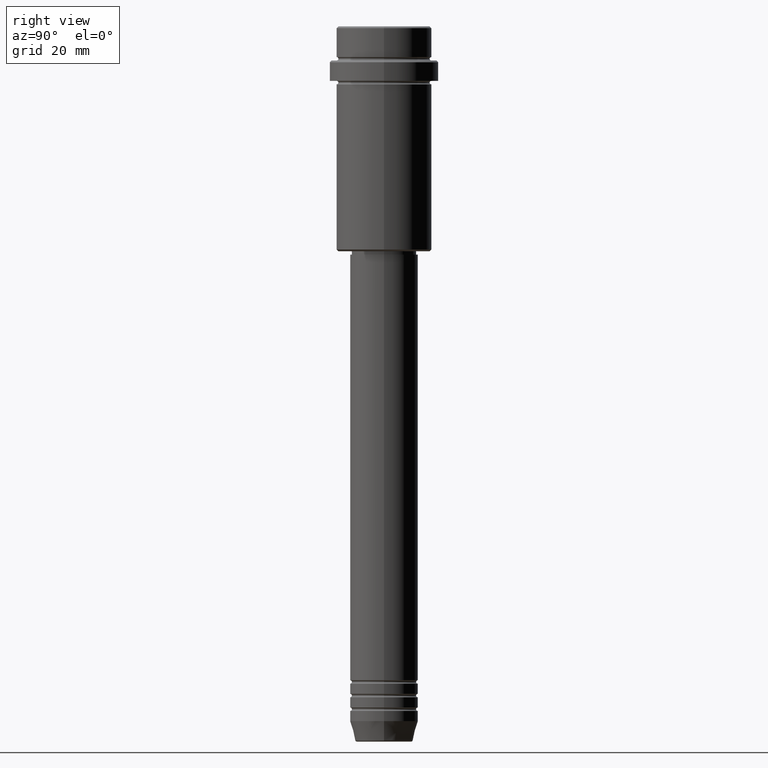
[diagram: clean part render]
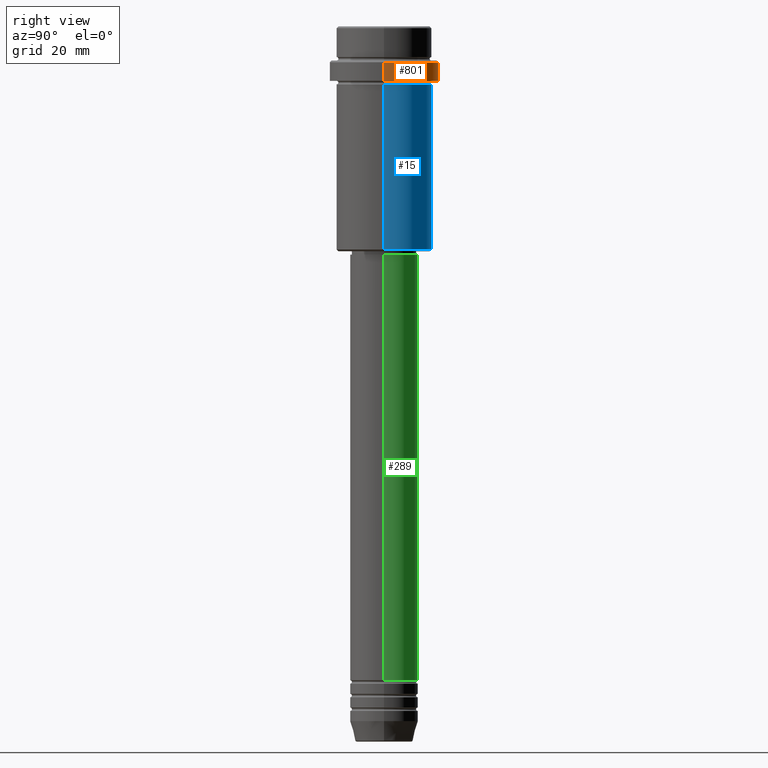
[diagram: same view with three faces highlighted in distinct colors, each labeled with its STEP entity id]
A machine part, right view with three faces highlighted in distinct colors.
Their STEP definitions:

[orange] entity #801 — the highlighted cylindrical surface (partial cylindrical patch) has radius 16 mm, axis along (-0, -0, 1).
#22 = DIRECTION ( 'NONE',  ( -0.000000000000000000, -0.000000000000000000, 1.000000000000000000 ) ) ;
#49 = CIRCLE ( 'NONE', #1293, 15.99999999999997335 ) ;
#53 = CARTESIAN_POINT ( 'NONE',  ( 0.000000000000000000, 0.000000000000000000, -10.50000000000001243 ) ) ;
#62 = VERTEX_POINT ( 'NONE', #322 ) ;
#147 = LINE ( 'NONE', #384, #1011 ) ;
#239 = EDGE_LOOP ( 'NONE', ( #621, #242, #903, #1045 ) ) ;
#242 = ORIENTED_EDGE ( 'NONE', *, *, #1250, .T. ) ;
#322 = CARTESIAN_POINT ( 'NONE',  ( 15.99999999999997335, 0.000000000000000000, -10.50000000000001243 ) ) ;
#351 = CYLINDRICAL_SURFACE ( 'NONE', #1207, 15.99999999999997335 ) ;
#384 = CARTESIAN_POINT ( 'NONE',  ( 15.99999999999997335, 0.000000000000000000, 0.000000000000000000 ) ) ;
#396 = FACE_OUTER_BOUND ( 'NONE', #239, .T. ) ;
#490 = DIRECTION ( 'NONE',  ( -0.000000000000000000, -0.000000000000000000, 1.000000000000000000 ) ) ;
#501 = DIRECTION ( 'NONE',  ( 0.000000000000000000, 0.000000000000000000, -1.000000000000000000 ) ) ;
#502 = CARTESIAN_POINT ( 'NONE',  ( -15.99999999999997335, 1.959434878635761976E-15, -16.00000000000000000 ) ) ;
#541 = VECTOR ( 'NONE', #22, 1000.000000000000000 ) ;
#599 = CARTESIAN_POINT ( 'NONE',  ( 15.99999999999997335, 0.000000000000000000, -16.00000000000000000 ) ) ;
#600 = EDGE_CURVE ( 'NONE', #1169, #62, #49, .T. ) ;
#621 = ORIENTED_EDGE ( 'NONE', *, *, #1054, .T. ) ;
#652 = CARTESIAN_POINT ( 'NONE',  ( 0.000000000000000000, 0.000000000000000000, -16.00000000000000000 ) ) ;
#692 = DIRECTION ( 'NONE',  ( -0.000000000000000000, -0.000000000000000000, 1.000000000000000000 ) ) ;
#694 = EDGE_CURVE ( 'NONE', #756, #62, #147, .T. ) ;
#750 = AXIS2_PLACEMENT_3D ( 'NONE', #652, #871, #1309 ) ;
#756 = VERTEX_POINT ( 'NONE', #599 ) ;
#801 = ADVANCED_FACE ( 'NONE', ( #396 ), #351, .T. ) ;
#871 = DIRECTION ( 'NONE',  ( -0.000000000000000000, -0.000000000000000000, 1.000000000000000000 ) ) ;
#903 = ORIENTED_EDGE ( 'NONE', *, *, #600, .T. ) ;
#987 = DIRECTION ( 'NONE',  ( 1.000000000000000000, 0.000000000000000000, 0.000000000000000000 ) ) ;
#1011 = VECTOR ( 'NONE', #490, 1000.000000000000000 ) ;
#1013 = LINE ( 'NONE', #1132, #541 ) ;
#1045 = ORIENTED_EDGE ( 'NONE', *, *, #694, .F. ) ;
#1054 = EDGE_CURVE ( 'NONE', #756, #1409, #1364, .T. ) ;
#1132 = CARTESIAN_POINT ( 'NONE',  ( -15.99999999999997335, 1.959434878635761976E-15, 0.000000000000000000 ) ) ;
#1169 = VERTEX_POINT ( 'NONE', #1301 ) ;
#1207 = AXIS2_PLACEMENT_3D ( 'NONE', #1237, #692, #987 ) ;
#1237 = CARTESIAN_POINT ( 'NONE',  ( 0.000000000000000000, 0.000000000000000000, 0.000000000000000000 ) ) ;
#1250 = EDGE_CURVE ( 'NONE', #1409, #1169, #1013, .T. ) ;
#1253 = DIRECTION ( 'NONE',  ( 1.000000000000000000, 0.000000000000000000, 0.000000000000000000 ) ) ;
#1293 = AXIS2_PLACEMENT_3D ( 'NONE', #53, #501, #1253 ) ;
#1301 = CARTESIAN_POINT ( 'NONE',  ( -15.99999999999997335, 1.959434878635761976E-15, -10.50000000000001243 ) ) ;
#1309 = DIRECTION ( 'NONE',  ( 1.000000000000000000, 0.000000000000000000, 0.000000000000000000 ) ) ;
#1364 = CIRCLE ( 'NONE', #750, 15.99999999999997335 ) ;
#1409 = VERTEX_POINT ( 'NONE', #502 ) ;

[blue] entity #15 — the highlighted cylindrical surface (partial cylindrical patch) has radius 14 mm, axis along (-0, -0, 1).
#15 = ADVANCED_FACE ( 'NONE', ( #1058 ), #741, .T. ) ;
#134 = DIRECTION ( 'NONE',  ( -0.000000000000000000, -0.000000000000000000, 1.000000000000000000 ) ) ;
#150 = LINE ( 'NONE', #247, #327 ) ;
#151 = VERTEX_POINT ( 'NONE', #875 ) ;
#173 = DIRECTION ( 'NONE',  ( 1.000000000000000000, 0.000000000000000000, 0.000000000000000000 ) ) ;
#231 = VERTEX_POINT ( 'NONE', #332 ) ;
#247 = CARTESIAN_POINT ( 'NONE',  ( -13.99999999999998401, 1.714505518806292666E-15, 0.000000000000000000 ) ) ;
#249 = ORIENTED_EDGE ( 'NONE', *, *, #279, .F. ) ;
#277 = EDGE_CURVE ( 'NONE', #151, #1107, #1391, .T. ) ;
#279 = EDGE_CURVE ( 'NONE', #1107, #231, #542, .T. ) ;
#305 = AXIS2_PLACEMENT_3D ( 'NONE', #644, #757, #173 ) ;
#309 = DIRECTION ( 'NONE',  ( -0.000000000000000000, -0.000000000000000000, 1.000000000000000000 ) ) ;
#327 = VECTOR ( 'NONE', #134, 1000.000000000000000 ) ;
#332 = CARTESIAN_POINT ( 'NONE',  ( -13.99999999999997158, 1.714505518806291877E-15, -17.00000000000000355 ) ) ;
#438 = ORIENTED_EDGE ( 'NONE', *, *, #1102, .T. ) ;
#485 = ORIENTED_EDGE ( 'NONE', *, *, #894, .T. ) ;
#491 = VERTEX_POINT ( 'NONE', #509 ) ;
#509 = CARTESIAN_POINT ( 'NONE',  ( -13.99999999999998401, 1.714505518806292666E-15, -65.50000000000004263 ) ) ;
#515 = CIRCLE ( 'NONE', #1320, 13.99999999999998401 ) ;
#526 = DIRECTION ( 'NONE',  ( -1.000000000000000000, 0.000000000000000000, 0.000000000000000000 ) ) ;
#542 = CIRCLE ( 'NONE', #305, 13.99999999999997158 ) ;
#644 = CARTESIAN_POINT ( 'NONE',  ( 0.000000000000000000, 0.000000000000000000, -17.00000000000000355 ) ) ;
#658 = VECTOR ( 'NONE', #309, 1000.000000000000000 ) ;
#697 = ORIENTED_EDGE ( 'NONE', *, *, #277, .F. ) ;
#741 = CYLINDRICAL_SURFACE ( 'NONE', #1183, 13.99999999999998401 ) ;
#757 = DIRECTION ( 'NONE',  ( -0.000000000000000000, -0.000000000000000000, 1.000000000000000000 ) ) ;
#874 = DIRECTION ( 'NONE',  ( -0.000000000000000000, -0.000000000000000000, 1.000000000000000000 ) ) ;
#875 = CARTESIAN_POINT ( 'NONE',  ( 13.99999999999998401, 0.000000000000000000, -65.50000000000004263 ) ) ;
#894 = EDGE_CURVE ( 'NONE', #151, #491, #515, .T. ) ;
#1027 = CARTESIAN_POINT ( 'NONE',  ( 13.99999999999997158, 0.000000000000000000, -17.00000000000000355 ) ) ;
#1028 = CARTESIAN_POINT ( 'NONE',  ( 0.000000000000000000, 0.000000000000000000, 0.000000000000000000 ) ) ;
#1035 = DIRECTION ( 'NONE',  ( 1.000000000000000000, 0.000000000000000000, 0.000000000000000000 ) ) ;
#1058 = FACE_OUTER_BOUND ( 'NONE', #1071, .T. ) ;
#1071 = EDGE_LOOP ( 'NONE', ( #485, #438, #249, #697 ) ) ;
#1102 = EDGE_CURVE ( 'NONE', #491, #231, #150, .T. ) ;
#1107 = VERTEX_POINT ( 'NONE', #1027 ) ;
#1172 = DIRECTION ( 'NONE',  ( -0.000000000000000000, -0.000000000000000000, 1.000000000000000000 ) ) ;
#1183 = AXIS2_PLACEMENT_3D ( 'NONE', #1028, #1172, #1035 ) ;
#1320 = AXIS2_PLACEMENT_3D ( 'NONE', #1413, #874, #526 ) ;
#1377 = CARTESIAN_POINT ( 'NONE',  ( 13.99999999999998401, 0.000000000000000000, 0.000000000000000000 ) ) ;
#1391 = LINE ( 'NONE', #1377, #658 ) ;
#1413 = CARTESIAN_POINT ( 'NONE',  ( 0.000000000000000000, 0.000000000000000000, -65.50000000000004263 ) ) ;

[green] entity #289 — the highlighted cylindrical surface (edge-blend (fillet) strip) has radius 10 mm, axis along (-0, -0, 1).
#45 = ORIENTED_EDGE ( 'NONE', *, *, #843, .F. ) ;
#64 = CYLINDRICAL_SURFACE ( 'NONE', #583, 10.00000000000000178 ) ;
#72 = VECTOR ( 'NONE', #1240, 1000.000000000000000 ) ;
#97 = CARTESIAN_POINT ( 'NONE',  ( -10.00000000000000000, 1.224646799147353256E-15, -191.9999999999999147 ) ) ;
#124 = LINE ( 'NONE', #569, #682 ) ;
#128 = VERTEX_POINT ( 'NONE', #97 ) ;
#139 = CIRCLE ( 'NONE', #818, 10.00000000000000178 ) ;
#162 = EDGE_CURVE ( 'NONE', #805, #1055, #124, .T. ) ;
#178 = CARTESIAN_POINT ( 'NONE',  ( 0.000000000000000000, 0.000000000000000000, -191.9999999999999147 ) ) ;
#183 = DIRECTION ( 'NONE',  ( 1.000000000000000000, 0.000000000000000000, 0.000000000000000000 ) ) ;
#195 = DIRECTION ( 'NONE',  ( -0.000000000000000000, -0.000000000000000000, 1.000000000000000000 ) ) ;
#289 = ADVANCED_FACE ( 'NONE', ( #510 ), #64, .T. ) ;
#290 = ORIENTED_EDGE ( 'NONE', *, *, #162, .F. ) ;
#334 = CARTESIAN_POINT ( 'NONE',  ( -10.00000000000000178, 1.224646799147353454E-15, 0.000000000000000000 ) ) ;
#402 = CIRCLE ( 'NONE', #1129, 10.00000000000000000 ) ;
#457 = DIRECTION ( 'NONE',  ( -0.000000000000000000, -0.000000000000000000, 1.000000000000000000 ) ) ;
#510 = FACE_OUTER_BOUND ( 'NONE', #701, .T. ) ;
#540 = EDGE_CURVE ( 'NONE', #805, #128, #402, .T. ) ;
#545 = CARTESIAN_POINT ( 'NONE',  ( 10.00000000000000178, 0.000000000000000000, -67.00000000000000000 ) ) ;
#554 = LINE ( 'NONE', #334, #72 ) ;
#569 = CARTESIAN_POINT ( 'NONE',  ( 10.00000000000000178, 0.000000000000000000, 0.000000000000000000 ) ) ;
#583 = AXIS2_PLACEMENT_3D ( 'NONE', #1066, #1290, #183 ) ;
#682 = VECTOR ( 'NONE', #457, 1000.000000000000000 ) ;
#701 = EDGE_LOOP ( 'NONE', ( #890, #960, #45, #290 ) ) ;
#761 = CARTESIAN_POINT ( 'NONE',  ( 0.000000000000000000, 0.000000000000000000, -67.00000000000000000 ) ) ;
#784 = VERTEX_POINT ( 'NONE', #905 ) ;
#805 = VERTEX_POINT ( 'NONE', #1007 ) ;
#818 = AXIS2_PLACEMENT_3D ( 'NONE', #761, #195, #1393 ) ;
#843 = EDGE_CURVE ( 'NONE', #1055, #784, #139, .T. ) ;
#890 = ORIENTED_EDGE ( 'NONE', *, *, #540, .T. ) ;
#905 = CARTESIAN_POINT ( 'NONE',  ( -10.00000000000000178, 1.224646799147353454E-15, -67.00000000000000000 ) ) ;
#955 = EDGE_CURVE ( 'NONE', #128, #784, #554, .T. ) ;
#960 = ORIENTED_EDGE ( 'NONE', *, *, #955, .T. ) ;
#1007 = CARTESIAN_POINT ( 'NONE',  ( 10.00000000000000000, 0.000000000000000000, -191.9999999999999147 ) ) ;
#1055 = VERTEX_POINT ( 'NONE', #545 ) ;
#1066 = CARTESIAN_POINT ( 'NONE',  ( 0.000000000000000000, 0.000000000000000000, 0.000000000000000000 ) ) ;
#1129 = AXIS2_PLACEMENT_3D ( 'NONE', #178, #1408, #1312 ) ;
#1240 = DIRECTION ( 'NONE',  ( -0.000000000000000000, -0.000000000000000000, 1.000000000000000000 ) ) ;
#1290 = DIRECTION ( 'NONE',  ( -0.000000000000000000, -0.000000000000000000, 1.000000000000000000 ) ) ;
#1312 = DIRECTION ( 'NONE',  ( 1.000000000000000000, 0.000000000000000000, 0.000000000000000000 ) ) ;
#1393 = DIRECTION ( 'NONE',  ( 1.000000000000000000, 0.000000000000000000, 0.000000000000000000 ) ) ;
#1408 = DIRECTION ( 'NONE',  ( -0.000000000000000000, -0.000000000000000000, 1.000000000000000000 ) ) ;